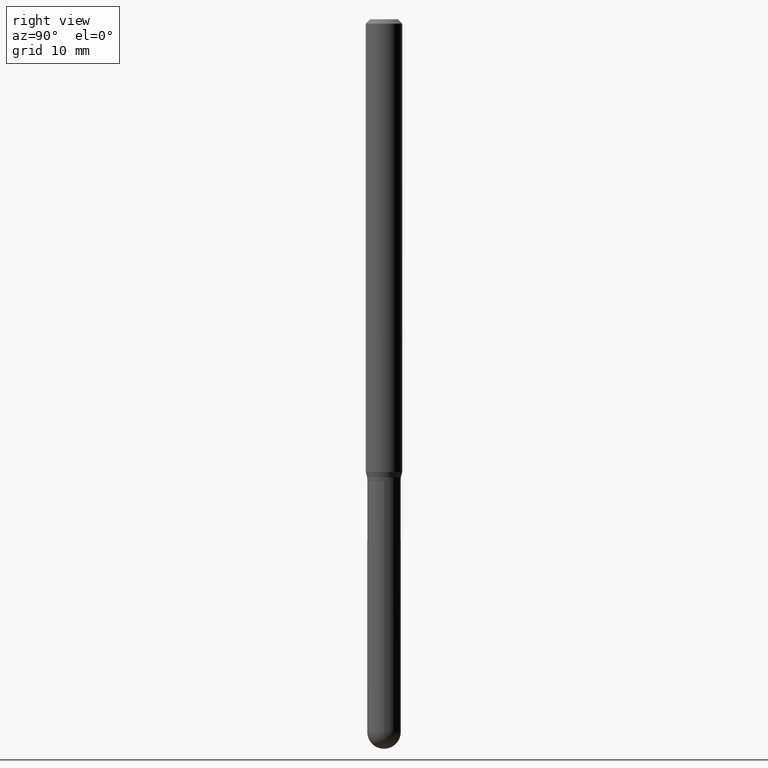
[diagram: clean part render]
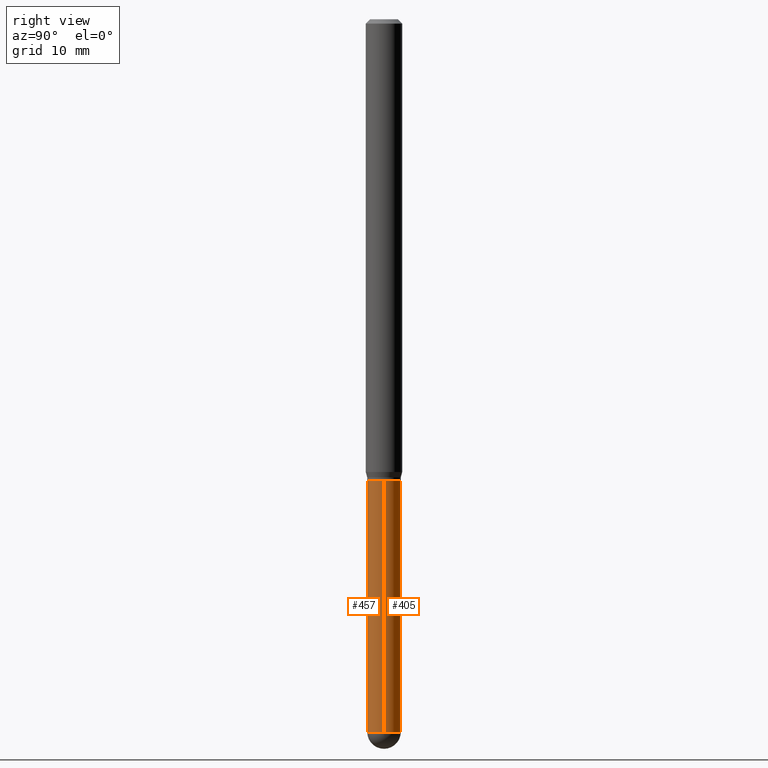
[diagram: same view with one multi-face feature highlighted, each face labeled with its STEP entity id]
A machine part, right view. The highlighted faces form ONE feature: a constant-radius fillet chain: 2 tangent blend faces with common blend radius 1.4605 mm. The faces share edges in the B-rep.
Their STEP definitions:
[1] entity #405 (Cylinder):
#45 = DIRECTION ( 'NONE',  ( -2.445468806185136597E-29, 3.491481338843145583E-15, 1.000000000000000000 ) ) ;
#54 = AXIS2_PLACEMENT_3D ( 'NONE', #315, #472, #190 ) ;
#63 = LINE ( 'NONE', #481, #339 ) ;
#92 = DIRECTION ( 'NONE',  ( -2.445468806185136877E-29, 3.491481338843145188E-15, 1.000000000000000000 ) ) ;
#122 = VERTEX_POINT ( 'NONE', #235 ) ;
#130 = ORIENTED_EDGE ( 'NONE', *, *, #460, .F. ) ;
#133 = LINE ( 'NONE', #483, #222 ) ;
#146 = ORIENTED_EDGE ( 'NONE', *, *, #217, .F. ) ;
#159 = CIRCLE ( 'NONE', #444, 0.05750000000000000250 ) ;
#160 = DIRECTION ( 'NONE',  ( 1.000000000000000000, -6.982962677686273810E-15, 0.000000000000000000 ) ) ;
#163 = CYLINDRICAL_SURFACE ( 'NONE', #198, 0.05750000000000000250 ) ;
#174 = DIRECTION ( 'NONE',  ( 1.000000000000000000, -6.982962677686265922E-15, 4.876176775795935232E-29 ) ) ;
#190 = DIRECTION ( 'NONE',  ( 1.000000000000000000, -6.982962677686273810E-15, 0.000000000000000000 ) ) ;
#198 = AXIS2_PLACEMENT_3D ( 'NONE', #211, #284, #174 ) ;
#199 = DIRECTION ( 'NONE',  ( -2.445468806185136597E-29, 3.491481338843145583E-15, 1.000000000000000000 ) ) ;
#202 = DIRECTION ( 'NONE',  ( 1.000000000000000000, -6.982962677686273810E-15, 0.000000000000000000 ) ) ;
#211 = CARTESIAN_POINT ( 'NONE',  ( 0.000000000000000000, 0.000000000000000000, 0.000000000000000000 ) ) ;
#216 = ORIENTED_EDGE ( 'NONE', *, *, #266, .T. ) ;
#217 = EDGE_CURVE ( 'NONE', #382, #237, #495, .T. ) ;
#222 = VECTOR ( 'NONE', #441, 39.37007874015748143 ) ;
#226 = CIRCLE ( 'NONE', #54, 0.05750000000000000250 ) ;
#227 = EDGE_CURVE ( 'NONE', #122, #230, #226, .T. ) ;
#230 = VERTEX_POINT ( 'NONE', #394 ) ;
#235 = CARTESIAN_POINT ( 'NONE',  ( 0.05750000000000000250, -7.423762196715237777E-15, -2.442499999999999893 ) ) ;
#237 = VERTEX_POINT ( 'NONE', #392 ) ;
#242 = VERTEX_POINT ( 'NONE', #349 ) ;
#266 = EDGE_CURVE ( 'NONE', #230, #242, #159, .T. ) ;
#279 = CARTESIAN_POINT ( 'NONE',  ( 5.973057559107196227E-29, -8.527943170124383355E-15, -2.442499999999999893 ) ) ;
#284 = DIRECTION ( 'NONE',  ( -2.445468806185136597E-29, 3.491481338843145583E-15, 1.000000000000000000 ) ) ;
#313 = AXIS2_PLACEMENT_3D ( 'NONE', #509, #199, #160 ) ;
#315 = CARTESIAN_POINT ( 'NONE',  ( 5.973057559107196227E-29, -8.527943170124383355E-15, -2.442499999999999893 ) ) ;
#338 = EDGE_LOOP ( 'NONE', ( #216, #347, #146, #130, #416 ) ) ;
#339 = VECTOR ( 'NONE', #92, 39.37007874015748143 ) ;
#347 = ORIENTED_EDGE ( 'NONE', *, *, #440, .T. ) ;
#349 = CARTESIAN_POINT ( 'NONE',  ( -0.05750000000000000250, -6.613679769686218604E-15, -2.442499999999999893 ) ) ;
#358 = CARTESIAN_POINT ( 'NONE',  ( 0.05750000000000000250, -5.918060869339130601E-15, -1.580000000000000071 ) ) ;
#365 = FACE_OUTER_BOUND ( 'NONE', #338, .T. ) ;
#382 = VERTEX_POINT ( 'NONE', #358 ) ;
#392 = CARTESIAN_POINT ( 'NONE',  ( -0.05750000000000000250, -6.613679769686218604E-15, -1.580000000000000071 ) ) ;
#394 = CARTESIAN_POINT ( 'NONE',  ( 4.015203539670203189E-16, 0.05749999999999149541, -2.442500000000000338 ) ) ;
#405 = ADVANCED_FACE ( 'NONE', ( #365 ), #163, .T. ) ;
#416 = ORIENTED_EDGE ( 'NONE', *, *, #227, .T. ) ;
#440 = EDGE_CURVE ( 'NONE', #242, #237, #63, .T. ) ;
#441 = DIRECTION ( 'NONE',  ( -2.445468806185136877E-29, 3.491481338843145188E-15, 1.000000000000000000 ) ) ;
#444 = AXIS2_PLACEMENT_3D ( 'NONE', #279, #45, #202 ) ;
#460 = EDGE_CURVE ( 'NONE', #122, #382, #133, .T. ) ;
#472 = DIRECTION ( 'NONE',  ( -2.445468806185136597E-29, 3.491481338843145583E-15, 1.000000000000000000 ) ) ;
#481 = CARTESIAN_POINT ( 'NONE',  ( -0.05750000000000000250, 4.085620730620576246E-16, -2.828387676896570712E-30 ) ) ;
#483 = CARTESIAN_POINT ( 'NONE',  ( 0.05750000000000000250, -4.015203539669603161E-16, 2.803801646082662941E-30 ) ) ;
#495 = CIRCLE ( 'NONE', #313, 0.05750000000000000250 ) ;
#509 = CARTESIAN_POINT ( 'NONE',  ( 3.863840713772516137E-29, -5.516540515372169792E-15, -1.580000000000000071 ) ) ;
[2] entity #457 (Cylinder):
#8 = DIRECTION ( 'NONE',  ( 1.000000000000000000, -6.982962677686265922E-15, 4.876176775795935232E-29 ) ) ;
#20 = DIRECTION ( 'NONE',  ( 1.000000000000000000, -6.982962677686273810E-15, 0.000000000000000000 ) ) ;
#35 = ORIENTED_EDGE ( 'NONE', *, *, #255, .T. ) ;
#36 = DIRECTION ( 'NONE',  ( 1.000000000000000000, -6.982962677686273810E-15, 0.000000000000000000 ) ) ;
#63 = LINE ( 'NONE', #481, #339 ) ;
#72 = EDGE_LOOP ( 'NONE', ( #456, #277, #35, #296, #200 ) ) ;
#76 = AXIS2_PLACEMENT_3D ( 'NONE', #218, #477, #435 ) ;
#92 = DIRECTION ( 'NONE',  ( -2.445468806185136877E-29, 3.491481338843145188E-15, 1.000000000000000000 ) ) ;
#95 = FACE_OUTER_BOUND ( 'NONE', #72, .T. ) ;
#109 = EDGE_CURVE ( 'NONE', #237, #382, #297, .T. ) ;
#122 = VERTEX_POINT ( 'NONE', #235 ) ;
#133 = LINE ( 'NONE', #483, #222 ) ;
#135 = CARTESIAN_POINT ( 'NONE',  ( -4.085620730619980656E-16, -0.05750000000000857203, -2.442499999999999893 ) ) ;
#165 = EDGE_CURVE ( 'NONE', #242, #300, #272, .T. ) ;
#184 = AXIS2_PLACEMENT_3D ( 'NONE', #370, #215, #20 ) ;
#200 = ORIENTED_EDGE ( 'NONE', *, *, #109, .F. ) ;
#215 = DIRECTION ( 'NONE',  ( -2.445468806185136597E-29, 3.491481338843145583E-15, 1.000000000000000000 ) ) ;
#218 = CARTESIAN_POINT ( 'NONE',  ( 3.863840713772516137E-29, -5.516540515372169792E-15, -1.580000000000000071 ) ) ;
#222 = VECTOR ( 'NONE', #441, 39.37007874015748143 ) ;
#235 = CARTESIAN_POINT ( 'NONE',  ( 0.05750000000000000250, -7.423762196715237777E-15, -2.442499999999999893 ) ) ;
#237 = VERTEX_POINT ( 'NONE', #392 ) ;
#242 = VERTEX_POINT ( 'NONE', #349 ) ;
#244 = CYLINDRICAL_SURFACE ( 'NONE', #268, 0.05750000000000000250 ) ;
#255 = EDGE_CURVE ( 'NONE', #300, #122, #393, .T. ) ;
#268 = AXIS2_PLACEMENT_3D ( 'NONE', #362, #445, #8 ) ;
#272 = CIRCLE ( 'NONE', #184, 0.05750000000000000250 ) ;
#277 = ORIENTED_EDGE ( 'NONE', *, *, #165, .T. ) ;
#296 = ORIENTED_EDGE ( 'NONE', *, *, #460, .T. ) ;
#297 = CIRCLE ( 'NONE', #76, 0.05750000000000000250 ) ;
#300 = VERTEX_POINT ( 'NONE', #135 ) ;
#339 = VECTOR ( 'NONE', #92, 39.37007874015748143 ) ;
#349 = CARTESIAN_POINT ( 'NONE',  ( -0.05750000000000000250, -6.613679769686218604E-15, -2.442499999999999893 ) ) ;
#358 = CARTESIAN_POINT ( 'NONE',  ( 0.05750000000000000250, -5.918060869339130601E-15, -1.580000000000000071 ) ) ;
#362 = CARTESIAN_POINT ( 'NONE',  ( 0.000000000000000000, 0.000000000000000000, 0.000000000000000000 ) ) ;
#370 = CARTESIAN_POINT ( 'NONE',  ( 5.973057559107196227E-29, -8.527943170124383355E-15, -2.442499999999999893 ) ) ;
#381 = AXIS2_PLACEMENT_3D ( 'NONE', #511, #506, #36 ) ;
#382 = VERTEX_POINT ( 'NONE', #358 ) ;
#392 = CARTESIAN_POINT ( 'NONE',  ( -0.05750000000000000250, -6.613679769686218604E-15, -1.580000000000000071 ) ) ;
#393 = CIRCLE ( 'NONE', #381, 0.05750000000000000250 ) ;
#435 = DIRECTION ( 'NONE',  ( 1.000000000000000000, -6.982962677686273810E-15, 0.000000000000000000 ) ) ;
#440 = EDGE_CURVE ( 'NONE', #242, #237, #63, .T. ) ;
#441 = DIRECTION ( 'NONE',  ( -2.445468806185136877E-29, 3.491481338843145188E-15, 1.000000000000000000 ) ) ;
#445 = DIRECTION ( 'NONE',  ( -2.445468806185136597E-29, 3.491481338843145583E-15, 1.000000000000000000 ) ) ;
#456 = ORIENTED_EDGE ( 'NONE', *, *, #440, .F. ) ;
#457 = ADVANCED_FACE ( 'NONE', ( #95 ), #244, .T. ) ;
#460 = EDGE_CURVE ( 'NONE', #122, #382, #133, .T. ) ;
#477 = DIRECTION ( 'NONE',  ( -2.445468806185136597E-29, 3.491481338843145583E-15, 1.000000000000000000 ) ) ;
#481 = CARTESIAN_POINT ( 'NONE',  ( -0.05750000000000000250, 4.085620730620576246E-16, -2.828387676896570712E-30 ) ) ;
#483 = CARTESIAN_POINT ( 'NONE',  ( 0.05750000000000000250, -4.015203539669603161E-16, 2.803801646082662941E-30 ) ) ;
#506 = DIRECTION ( 'NONE',  ( -2.445468806185136597E-29, 3.491481338843145583E-15, 1.000000000000000000 ) ) ;
#511 = CARTESIAN_POINT ( 'NONE',  ( 5.973057559107196227E-29, -8.527943170124383355E-15, -2.442499999999999893 ) ) ;